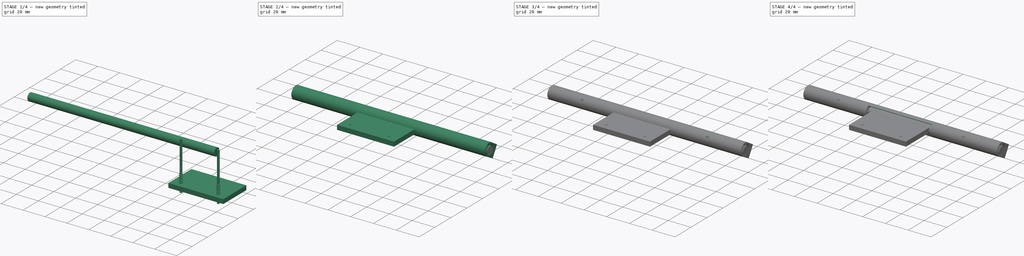
[diagram: build sequence overview — one tinted view per stage of 4, left to right]
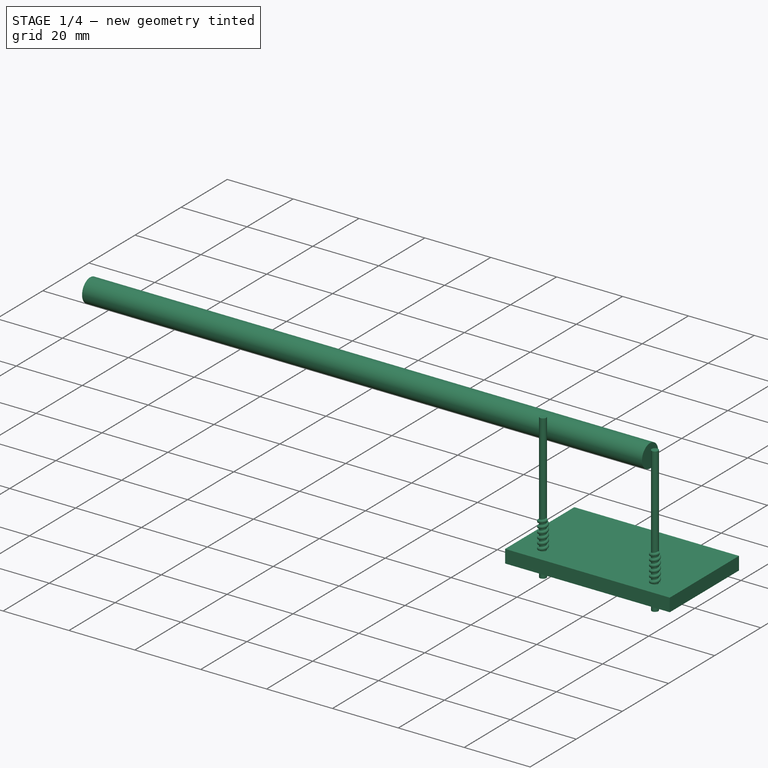
[diagram: stage 1 of 4 — iso view after this stage's code; geometry added in this stage tinted green]
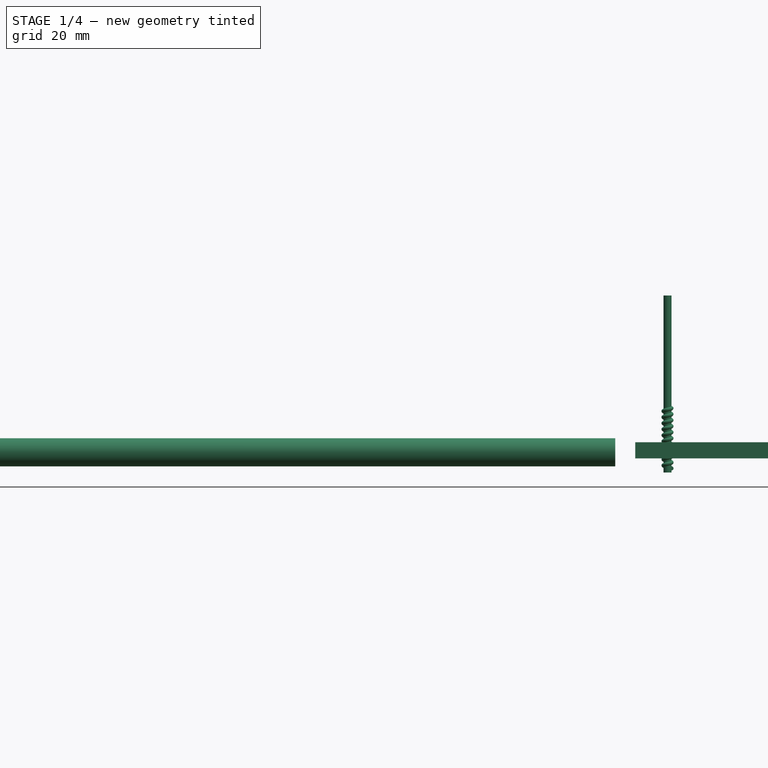
[diagram: stage 1 of 4 — front view after this stage's code; geometry added in this stage tinted green]
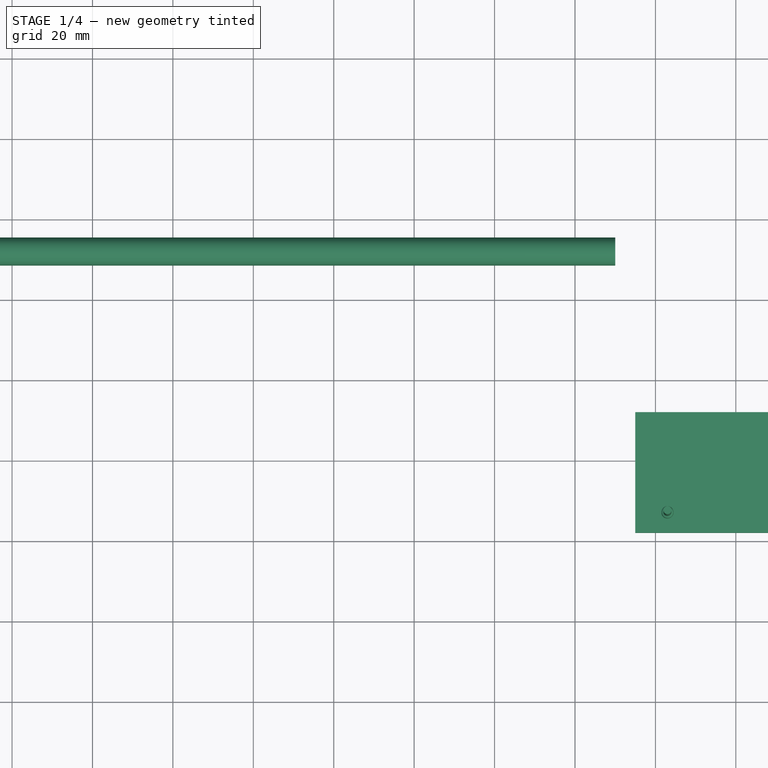
[diagram: stage 1 of 4 — top view after this stage's code; geometry added in this stage tinted green]
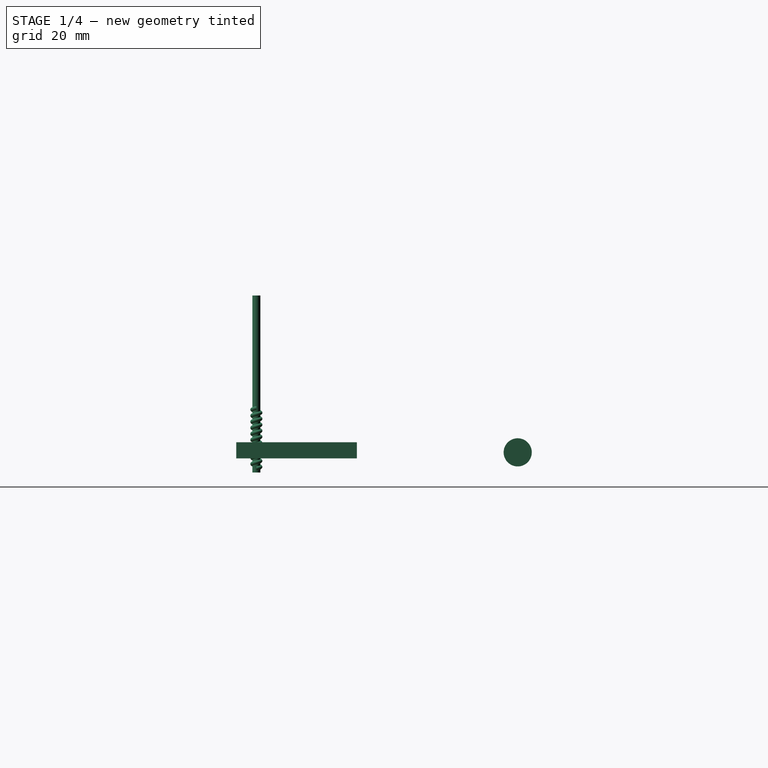
[diagram: stage 1 of 4 — right view after this stage's code; geometry added in this stage tinted green]
FCSTD DOCUMENT  (FreeCAD 0.21R33694 (Git))
Label: brazo-reducido2
License: Creative Commons Attribution-ShareAlike
LicenseURL: http://creativecommons.org/licenses/by-sa/4.0/
objects: Part::Feature×5, Part::Cut×3, Part::Box×2, Part::Fuse×2, Sketcher::SketchObject×2, Part::MultiFuse×1, Part::Cylinder×1, PartDesign::Body×1, Part::Extrusion×1, App::LinkGroup×1, Part::Compound×1
note: 19 computed .brp shape members not serialized (recipe doc carries the construction recipe); baked Part::Feature solids carry a one-line shape summary decoded from their .brp

FEATURE [Part::Box] Box  label="Cubo"
  AttacherType = Attacher::AttachEngine3D
  Height = 4
  Length = 50
  Placement = pos=(-25,22,-7.5) rot=(0,0,1;0rad)
  Width = 30
FEATURE [Part::Feature] Fusion001005  label="Rosca macho006"
  Placement = pos=(-17,27,-10) rot=(0,0,1;0rad)
  shape: bbox 3.919 x 4.387 x 44 mm, 35 faces (baked)
FEATURE [Part::Feature] Fusion001006  label="Rosca macho007"
  Placement = pos=(17,27,-10) rot=(0,0,1;0rad)
  shape: bbox 3.919 x 4.387 x 44 mm, 35 faces (baked)
FEATURE [Part::MultiFuse] Fusion001007
  Refine = true
  Shapes = -> [Fusion001005,Fusion001006]
FEATURE [Part::Cylinder] Cylinder  label="Cilindro-movil"
  Angle = 360
  AttacherType = Attacher::AttachEngine3D
  FirstAngle = 0
  Height = 170
  Placement = pos=(-200,92,-6) rot=(0,1,0;1.5708rad)
  Radius = 3.5
  SecondAngle = 0
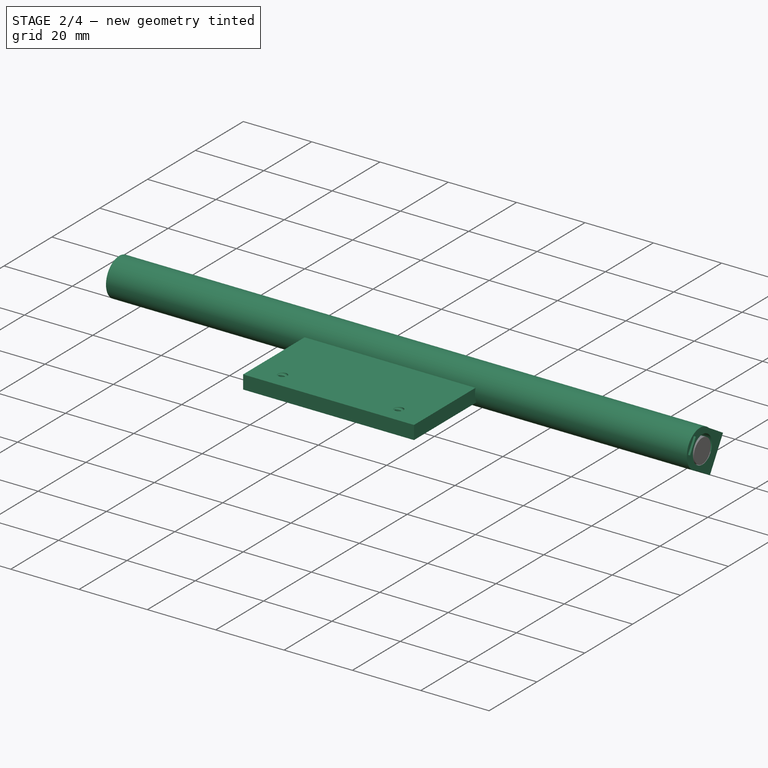
[diagram: stage 2 of 4 — iso view after this stage's code; geometry added in this stage tinted green]
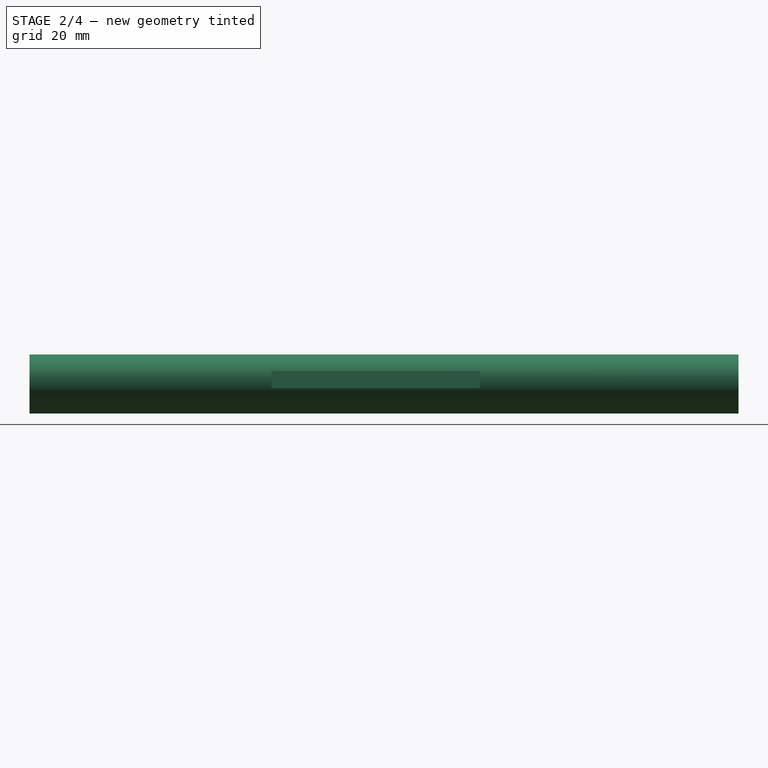
[diagram: stage 2 of 4 — front view after this stage's code; geometry added in this stage tinted green]
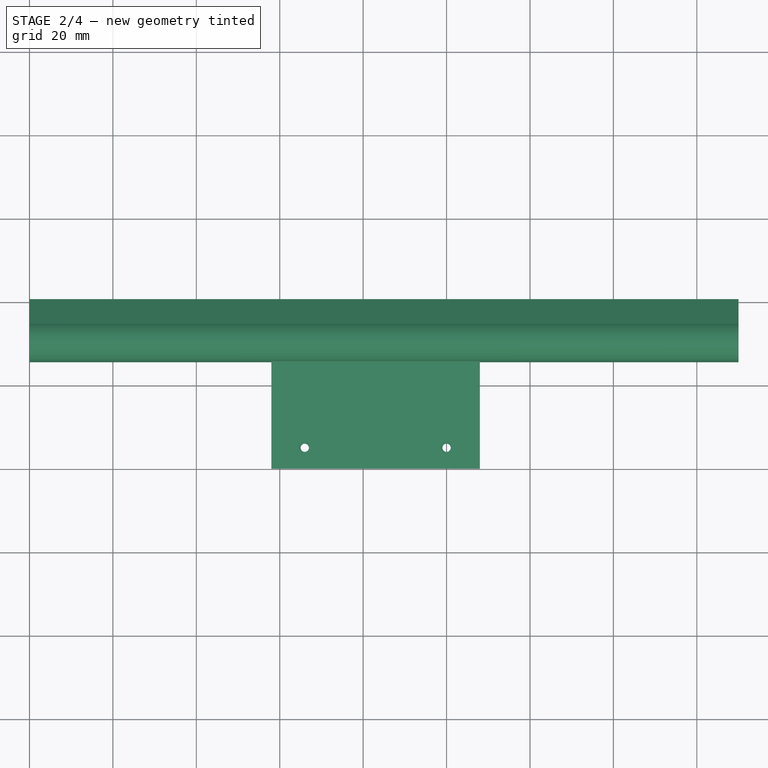
[diagram: stage 2 of 4 — top view after this stage's code; geometry added in this stage tinted green]
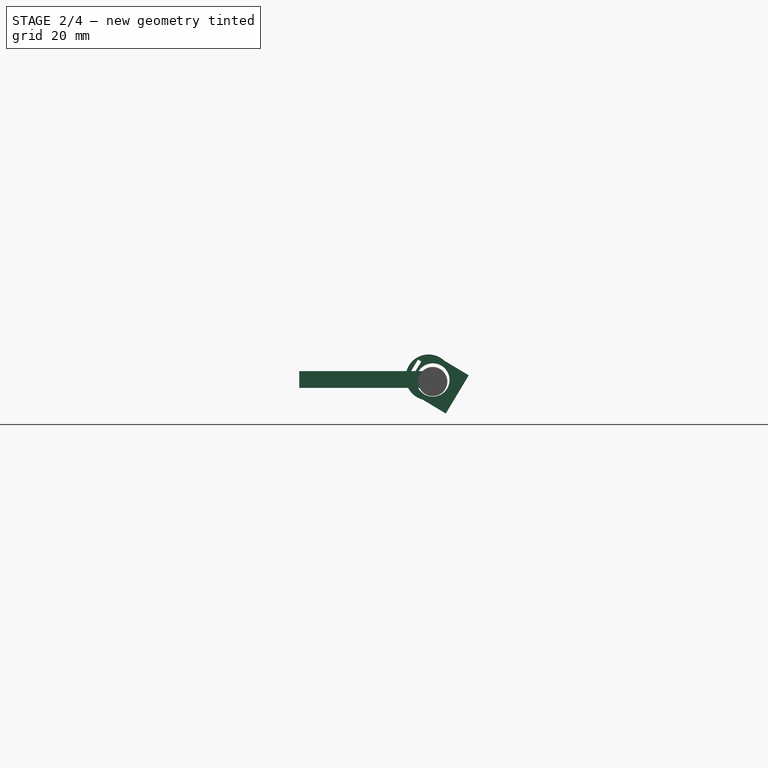
[diagram: stage 2 of 4 — right view after this stage's code; geometry added in this stage tinted green]
FEATURE [Part::Cut] Cut001  label="Soporte_eje"
  Base = -> Box
  Placement = pos=(-117,38,0) rot=(0,0,1;0rad)
  Refine = true
  Tool = -> Fusion001007
FEATURE [Sketcher::SketchObject] Sketch007
  FullyConstrained = false
  MapMode = 5
  Placement = pos=(0,0,0) rot=(0.57735,0.57735,0.57735;2.0944rad)
  Support = -> [YZ_Plane003]
  sketch-geometry (6):
    g0: Circle CenterX=0 CenterY=0 CenterZ=0 NormalX=0 NormalY=0 NormalZ=1 AngleXU=0 Radius=5.5
    g1: Circle CenterX=0 CenterY=-1.19343 CenterZ=0 NormalX=0 NormalY=0 NormalZ=1 AngleXU=0 Radius=4
    g2: LineSegment StartX=-2.35964 StartY=6.31767 StartZ=0 EndX=2.35964 EndY=6.31767 EndZ=0
    g3: LineSegment StartX=2.35964 StartY=6.31767 StartZ=0 EndX=2.35964 EndY=5.38418 EndZ=0
    g4: LineSegment StartX=2.35964 StartY=5.38418 StartZ=0 EndX=-2.35964 EndY=5.38418 EndZ=0
    g5: LineSegment StartX=-2.35964 StartY=5.38418 StartZ=0 EndX=-2.35964 EndY=6.31767 EndZ=0
  constraints (12):
    c: Coincident(g0,g-1)
    c: Coincident(g2,g3)
    c: Coincident(g3,g4)
    c: Coincident(g4,g5)
    c: Coincident(g5,g2)
    c: Horizontal(g4)
    c: Vertical(g3)
    c: Vertical(g5)
    c: Symmetric(g2,g2,g-2)
    c: PointOnObject(g1,g-2)
    c: Radius(g0) = 5.5
    c: Radius(g1) = 4
FEATURE [PartDesign::Body] Body003
  Group = -> [Sketch007]
  Origin = -> Origin003
  Placement = pos=(-200,91,-5.5) rot=(1,0,0;0.959931rad)
FEATURE [Sketcher::SketchObject] Sketch008
  FullyConstrained = false
  MapMode = 5
  Placement = pos=(0,0,0) rot=(0.57735,0.57735,0.57735;2.0944rad)
  Support = -> [YZ_Plane004]
  sketch-geometry (9):
    g0: ArcOfCircle CenterX=0 CenterY=0 CenterZ=0 NormalX=0 NormalY=0 NormalZ=1 AngleXU=0 Radius=5.5 StartAngle=6.08579 EndAngle=9.70025
    g1: Circle CenterX=0 CenterY=-1.19343 CenterZ=0 NormalX=0 NormalY=0 NormalZ=1 AngleXU=0 Radius=4
    g2: LineSegment StartX=-2.36 StartY=4.37566 StartZ=0 EndX=2.36 EndY=4.37566 EndZ=0
    g3: LineSegment StartX=2.36 StartY=4.37566 StartZ=0 EndX=2.36 EndY=3.44566 EndZ=0
    g4: LineSegment StartX=2.36 StartY=3.44566 StartZ=0 EndX=-2.36 EndY=3.44566 EndZ=0
    g5: LineSegment StartX=-2.36 StartY=3.44566 StartZ=0 EndX=-2.36 EndY=4.37566 EndZ=0
    g6: LineSegment StartX=-5.29263 StartY=-1.49602 StartZ=0 EndX=-5.29263 EndY=-8 EndZ=0
    g7: LineSegment StartX=-5.29263 StartY=-8 StartZ=0 EndX=5.39319 EndY=-8 EndZ=0
    g8: LineSegment StartX=5.39319 StartY=-8 StartZ=0 EndX=5.39319 EndY=-1.07864 EndZ=0
  constraints (21):
    c: Coincident(g0,g-1)
    c: Coincident(g2,g3)
    c: Coincident(g3,g4)
    c: Coincident(g4,g5)
    c: Coincident(g5,g2)
    c: Horizontal(g4)
    c: Vertical(g3)
    c: Vertical(g5)
    c: Symmetric(g2,g2,g-2)
    c: PointOnObject(g1,g-2)
    c: Radius(g0) = 5.5
    c: Radius(g1) = 4
    c: DistanceY(g5,g5) = 0.93
    c: DistanceX(g2,g2) = 4.72
    c: Coincident(g6,g7)
    c: Coincident(g7,g8)
    c: Horizontal(g7)
    c: Vertical(g6)
    c: Vertical(g8)
    c: Coincident(g0,g8)
    c: Coincident(g6,g0)
FEATURE [Part::Extrusion] Extrude  label="cilindro-fijo"
  Base = -> Sketch008
  Dir = (1,-1e-16,1e-16)
  DirMode = 2
  FaceMakerClass = Part::FaceMakerBullseye
  LengthFwd = 170
  LengthRev = 0
  Placement = pos=(-200,91,-5) rot=(1,0,0;1.02974rad)
  Solid = true
  Symmetric = false
FEATURE [Part::Fuse] Fusion001010  label="cilindro-movil"
  Base = -> Cut001
  Refine = true
  Tool = -> Cylinder
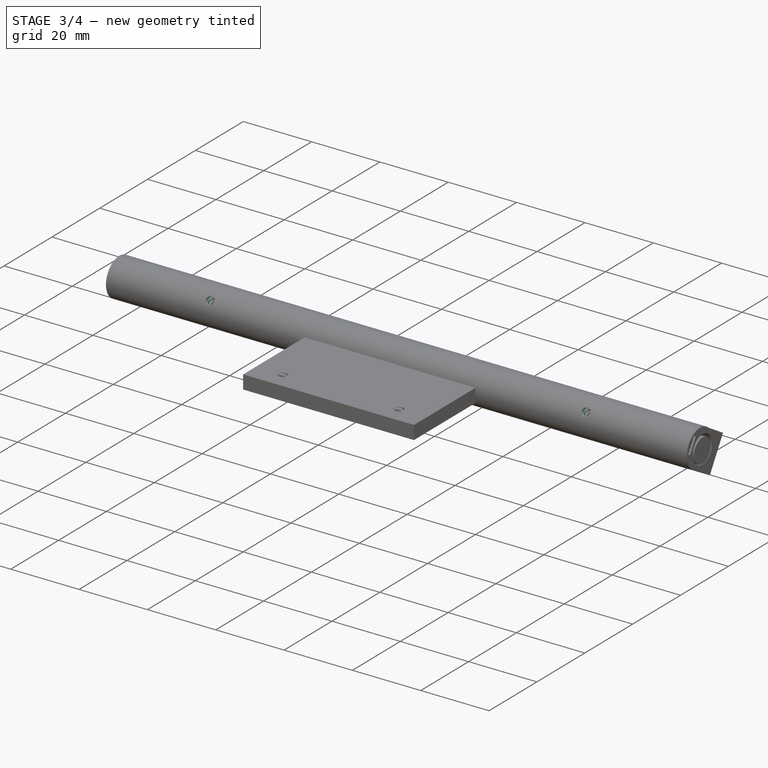
[diagram: stage 3 of 4 — iso view after this stage's code; geometry added in this stage tinted green]
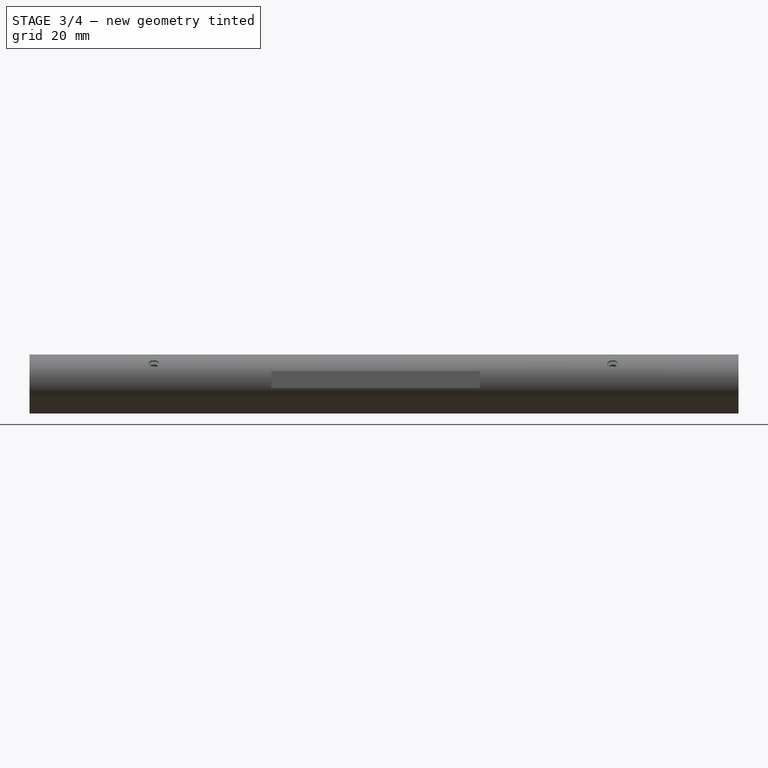
[diagram: stage 3 of 4 — front view after this stage's code; geometry added in this stage tinted green]
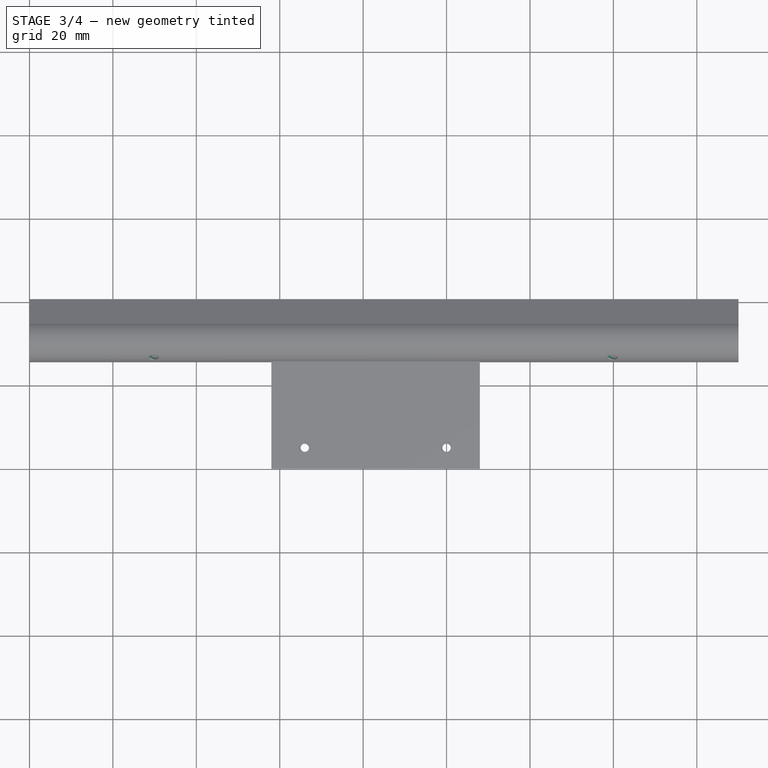
[diagram: stage 3 of 4 — top view after this stage's code; geometry added in this stage tinted green]
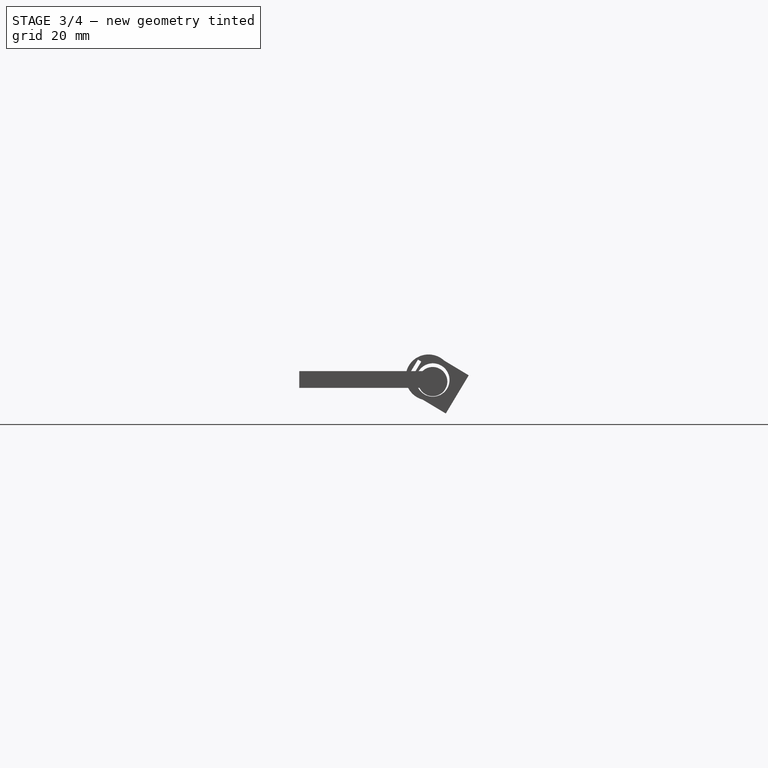
[diagram: stage 3 of 4 — right view after this stage's code; geometry added in this stage tinted green]
FEATURE [Part::Feature] Fusion001008  label="Rosca macho008"
  Placement = pos=(-170,93.75,-8.78) rot=(0.819304,0.219813,-0.52955;0.936369rad)
  shape: bbox 4.221 x 33 x 32.52 mm, 35 faces (baked)
FEATURE [Part::Feature] Fusion001009  label="Rosca macho009"
  Placement = pos=(-60,93.75,-8.78) rot=(0.819304,0.219813,-0.52955;0.936369rad)
  shape: bbox 4.221 x 33 x 32.52 mm, 35 faces (baked)
FEATURE [Part::Fuse] Fusion  label="roscas"
  Base = -> Fusion001008
  Refine = true
  Tool = -> Fusion001009
FEATURE [Part::Cut] Cut
  Base = -> Extrude
  Refine = true
  Tool = -> Fusion
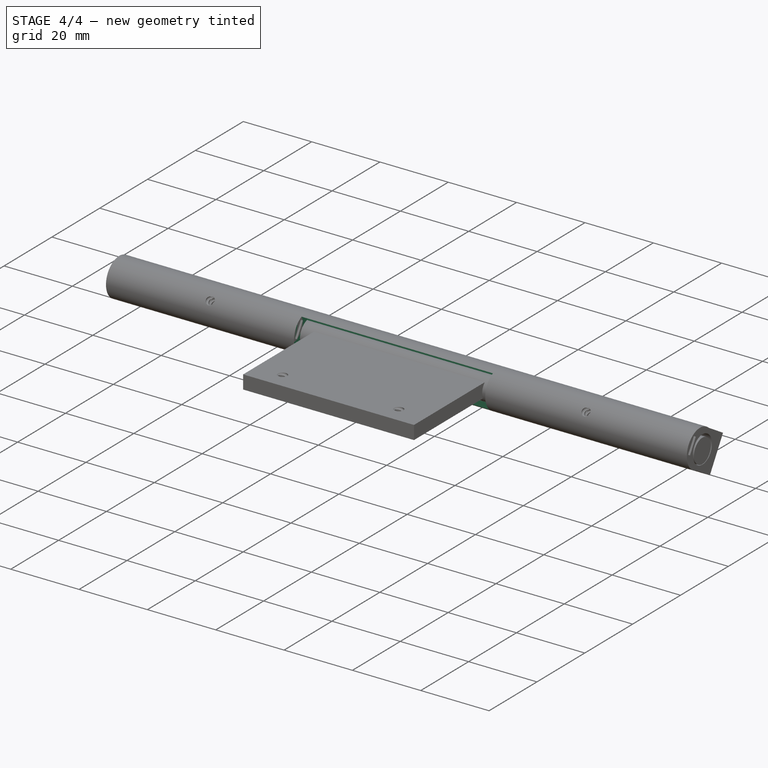
[diagram: stage 4 of 4 — iso view after this stage's code; geometry added in this stage tinted green]
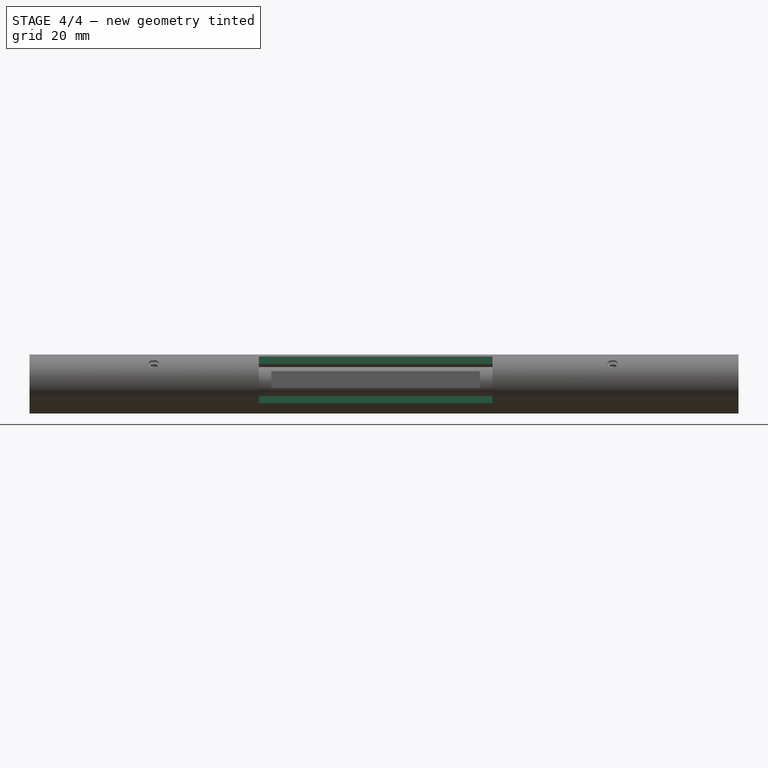
[diagram: stage 4 of 4 — front view after this stage's code; geometry added in this stage tinted green]
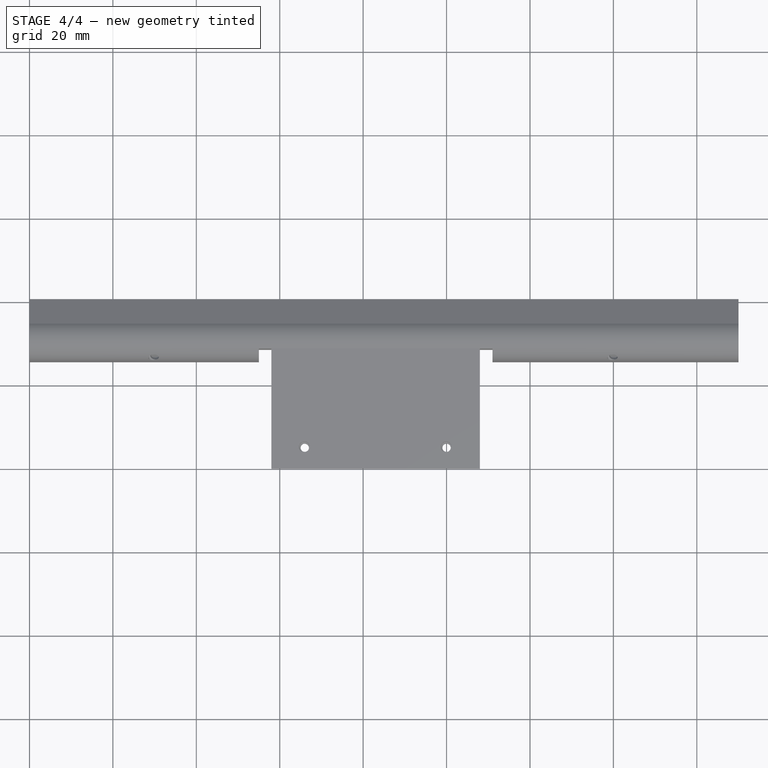
[diagram: stage 4 of 4 — top view after this stage's code; geometry added in this stage tinted green]
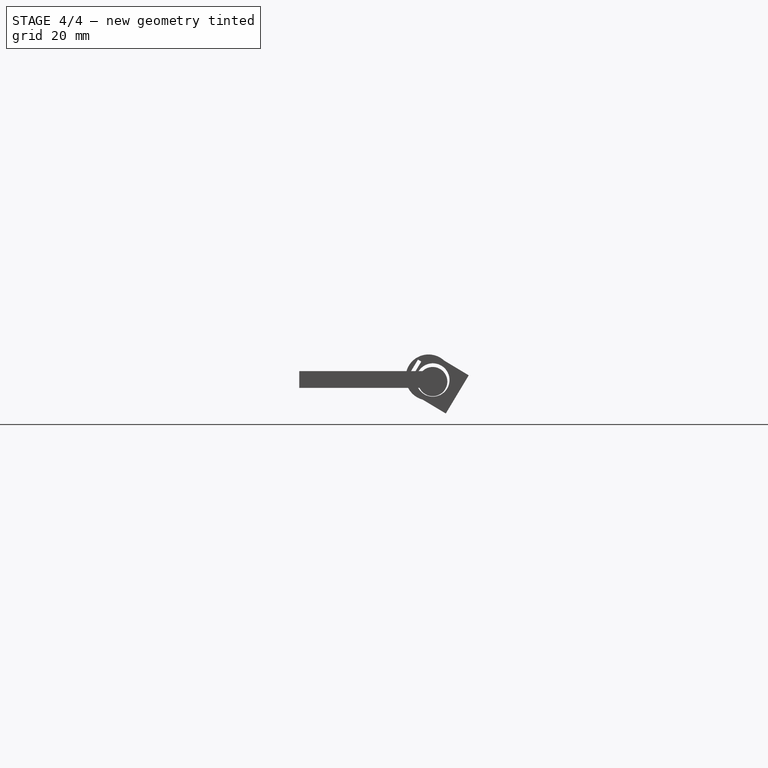
[diagram: stage 4 of 4 — right view after this stage's code; geometry added in this stage tinted green]
FEATURE [Part::Box] Box001  label="cubo-corte"
  AttacherType = Attacher::AttachEngine3D
  Height = 20
  Length = 56
  Placement = pos=(-145,75,-20) rot=(0,0,1;0rad)
  Width = 16
FEATURE [Part::Cut] Cut002  label="fijacion-brazo"
  Base = -> Cut
  Refine = true
  Tool = -> Box001
FEATURE [App::LinkGroup] LinkGroup  label="brazo"
  ElementList = -> [Cut002,Fusion001010,Body003,YZ_Plane004]
  LinkMode = 0
FEATURE [Part::Compound] Compound  label="brazo-compound"
  Links = -> [Cut002,Fusion001010]
FEATURE [Part::Feature] Compound001  label="brazo-compound-simple"
  shape: bbox 170 x 40.64 x 14.16 mm, 58 faces, 2 solids (baked)
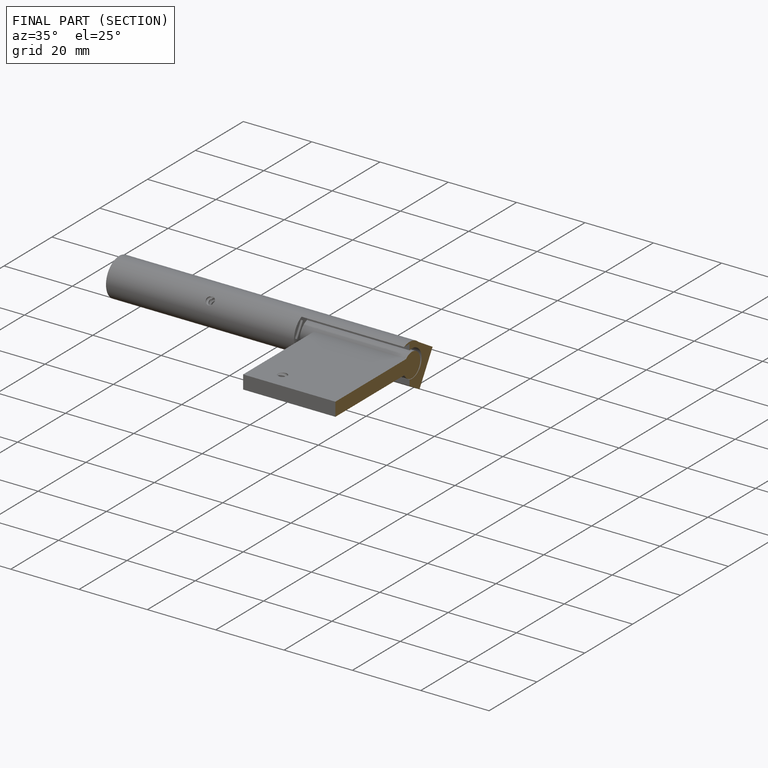
[diagram: finished part — half-section view (interior)]
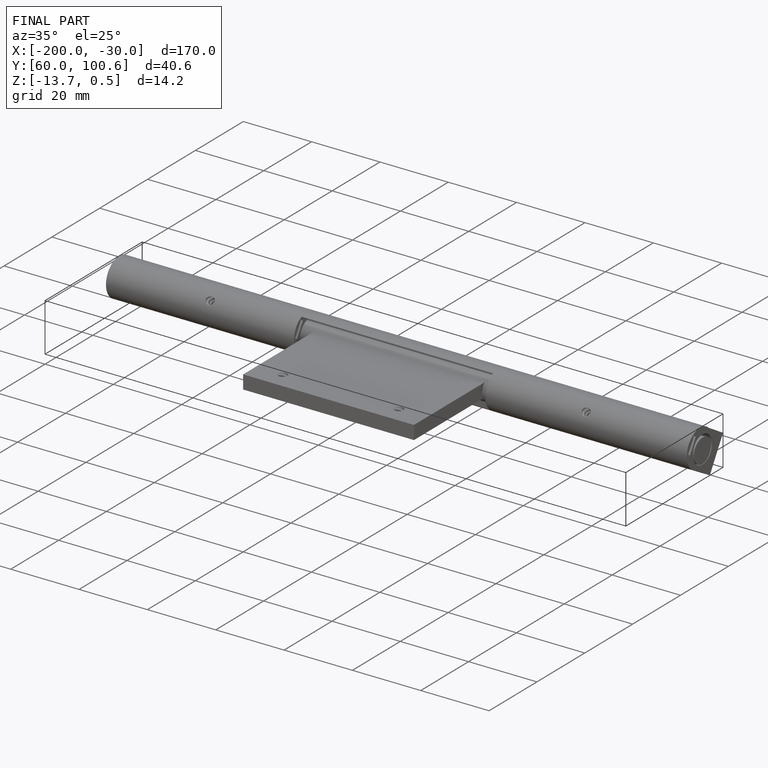
[diagram: finished part — iso view with bounding-box wireframe]
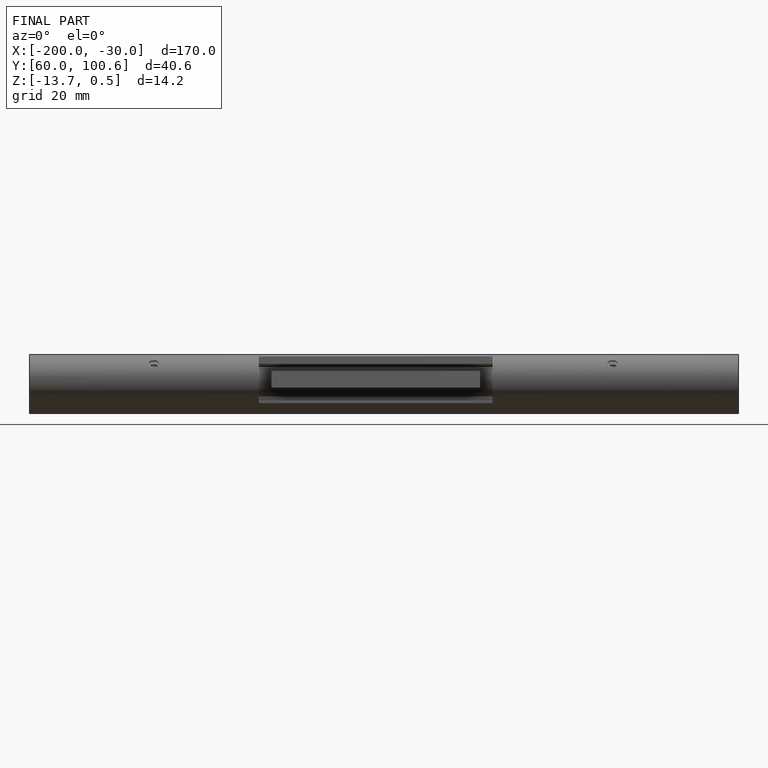
[diagram: finished part — front view with bounding-box wireframe]
